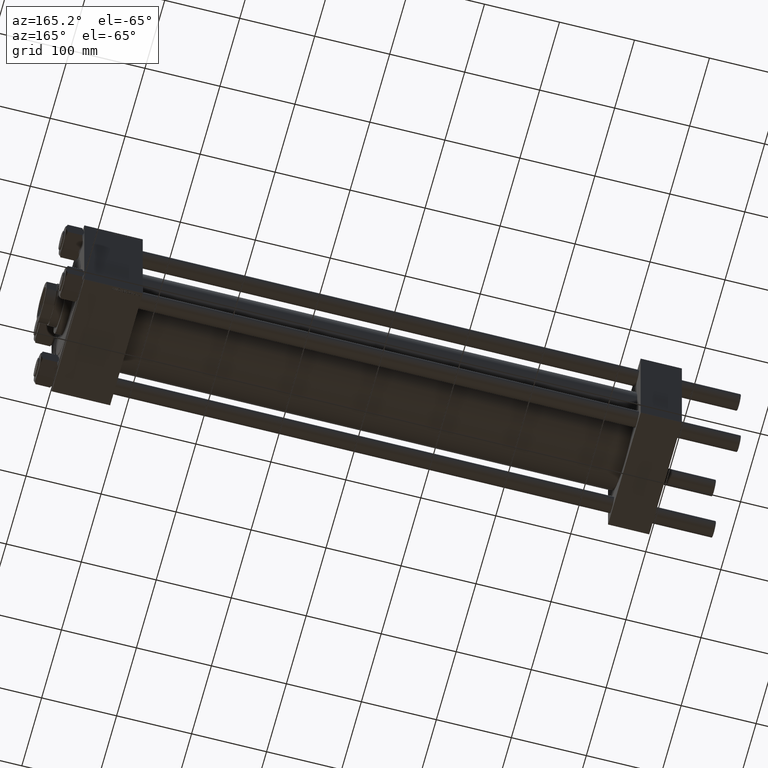
[diagram: clean part render]
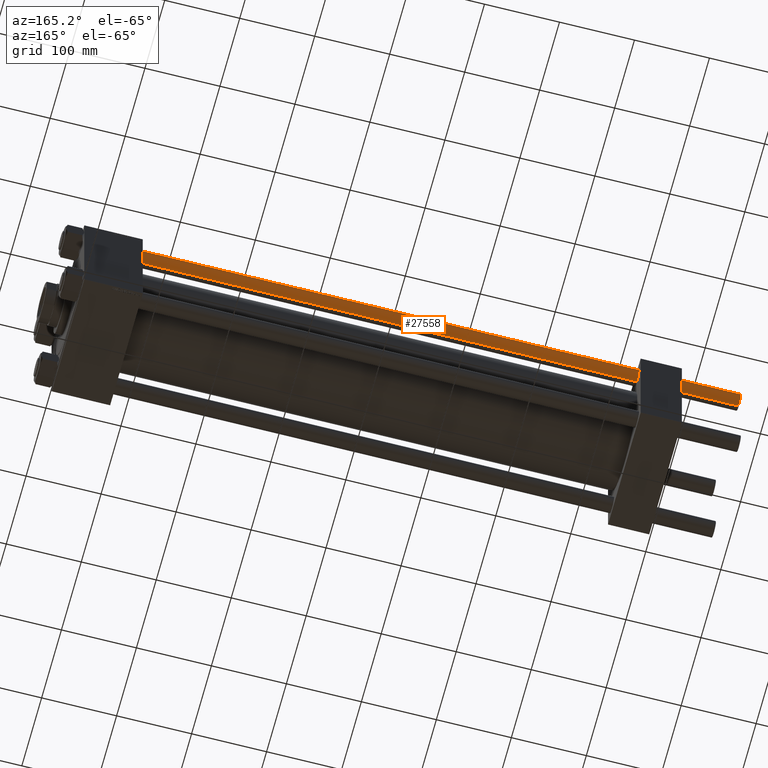
[diagram: same view with one face highlighted and labeled with its STEP entity id]
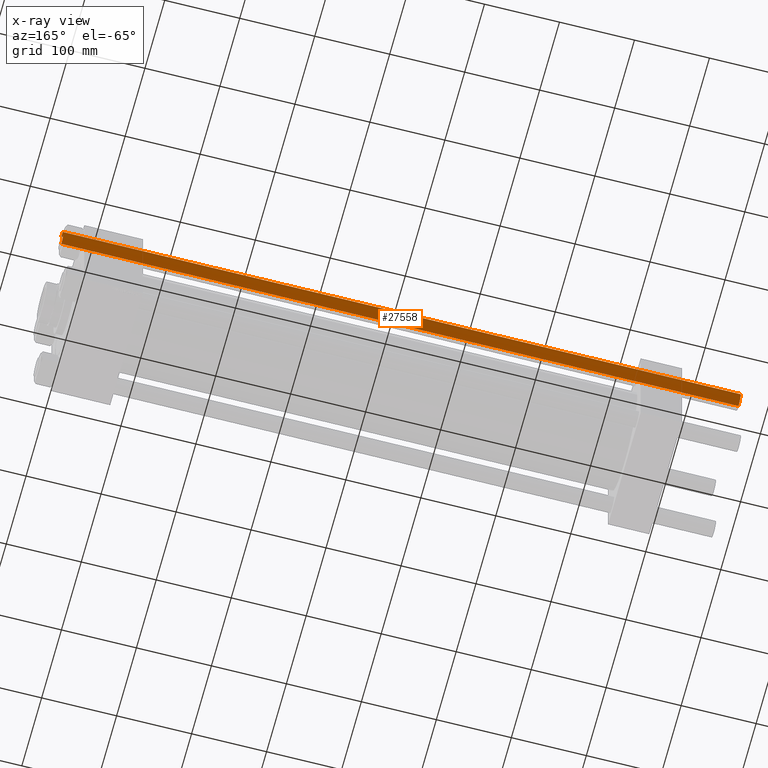
[diagram: x-ray of the same camera — body ghosted, the highlighted face saturated]
A machine part, auxiliary view. The second image highlights one B-rep face of the part: STEP entity #27558.
The next image is the same camera in x-ray: the body ghosted, the highlighted face saturated — about 0% of this face is hidden behind the body in this view.
In plain terms, the highlighted cylindrical surface (edge-blend (fillet) strip) has radius 11 mm, axis along (-1, -0, -0).
Its self-contained STEP definition (entity closure, byte-faithful):
#45 = CARTESIAN_POINT ( 'NONE',  ( -11.00000000000000000, 0.000000000000000000, 0.5000000000000559552 ) ) ;
#227 = CARTESIAN_POINT ( 'NONE',  ( 11.00000000000000000, 1.347111479062088405E-15, 0.5000000000000559552 ) ) ;
#2566 = DIRECTION ( 'NONE',  ( -0.000000000000000000, -0.000000000000000000, -1.000000000000000000 ) ) ;
#2955 = CYLINDRICAL_SURFACE ( 'NONE', #17504, 11.00000000000000000 ) ;
#3116 = DIRECTION ( 'NONE',  ( 1.000000000000000000, 0.000000000000000000, 0.000000000000000000 ) ) ;
#3189 = DIRECTION ( 'NONE',  ( 1.000000000000000000, 0.000000000000000000, 0.000000000000000000 ) ) ;
#3578 = CARTESIAN_POINT ( 'NONE',  ( -11.00000000000000000, 0.000000000000000000, 904.0000000000000000 ) ) ;
#6606 = CIRCLE ( 'NONE', #18819, 11.00000000000000000 ) ;
#6670 = DIRECTION ( 'NONE',  ( 0.000000000000000000, 0.000000000000000000, -1.000000000000000000 ) ) ;
#10753 = AXIS2_PLACEMENT_3D ( 'NONE', #33399, #6670, #3116 ) ;
#10962 = EDGE_CURVE ( 'NONE', #15493, #21401, #23667, .T. ) ;
#13587 = ORIENTED_EDGE ( 'NONE', *, *, #41267, .F. ) ;
#13837 = VECTOR ( 'NONE', #26045, 1000.000000000000000 ) ;
#14660 = VERTEX_POINT ( 'NONE', #48063 ) ;
#15493 = VERTEX_POINT ( 'NONE', #24528 ) ;
#15572 = EDGE_CURVE ( 'NONE', #14660, #15493, #33492, .T. ) ;
#17504 = AXIS2_PLACEMENT_3D ( 'NONE', #22560, #29691, #45190 ) ;
#17886 = ORIENTED_EDGE ( 'NONE', *, *, #10962, .T. ) ;
#18819 = AXIS2_PLACEMENT_3D ( 'NONE', #38035, #26857, #3189 ) ;
#21349 = VECTOR ( 'NONE', #2566, 1000.000000000000000 ) ;
#21401 = VERTEX_POINT ( 'NONE', #227 ) ;
#22560 = CARTESIAN_POINT ( 'NONE',  ( 0.000000000000000000, 0.000000000000000000, 904.0000000000000000 ) ) ;
#23667 = LINE ( 'NONE', #46539, #13837 ) ;
#24528 = CARTESIAN_POINT ( 'NONE',  ( 11.00000000000000000, 1.347111479062088405E-15, 903.5000000000002274 ) ) ;
#25880 = FACE_OUTER_BOUND ( 'NONE', #47190, .T. ) ;
#26045 = DIRECTION ( 'NONE',  ( -0.000000000000000000, -0.000000000000000000, -1.000000000000000000 ) ) ;
#26749 = LINE ( 'NONE', #3578, #21349 ) ;
#26857 = DIRECTION ( 'NONE',  ( -0.000000000000000000, -0.000000000000000000, 1.000000000000000000 ) ) ;
#27558 = ADVANCED_FACE ( 'NONE', ( #25880 ), #2955, .T. ) ;
#29691 = DIRECTION ( 'NONE',  ( -0.000000000000000000, -0.000000000000000000, -1.000000000000000000 ) ) ;
#33399 = CARTESIAN_POINT ( 'NONE',  ( 0.000000000000000000, 0.000000000000000000, 903.5000000000002274 ) ) ;
#33492 = CIRCLE ( 'NONE', #10753, 11.00000000000000000 ) ;
#34094 = EDGE_CURVE ( 'NONE', #21401, #46530, #6606, .T. ) ;
#38035 = CARTESIAN_POINT ( 'NONE',  ( 0.000000000000000000, 0.000000000000000000, 0.5000000000000559552 ) ) ;
#41267 = EDGE_CURVE ( 'NONE', #14660, #46530, #26749, .T. ) ;
#43542 = ORIENTED_EDGE ( 'NONE', *, *, #15572, .T. ) ;
#45190 = DIRECTION ( 'NONE',  ( -1.000000000000000000, 0.000000000000000000, 0.000000000000000000 ) ) ;
#46530 = VERTEX_POINT ( 'NONE', #45 ) ;
#46539 = CARTESIAN_POINT ( 'NONE',  ( 11.00000000000000000, 1.347111479062088405E-15, 904.0000000000000000 ) ) ;
#46638 = ORIENTED_EDGE ( 'NONE', *, *, #34094, .T. ) ;
#47190 = EDGE_LOOP ( 'NONE', ( #43542, #17886, #46638, #13587 ) ) ;
#48063 = CARTESIAN_POINT ( 'NONE',  ( -11.00000000000000000, 0.000000000000000000, 903.5000000000002274 ) ) ;